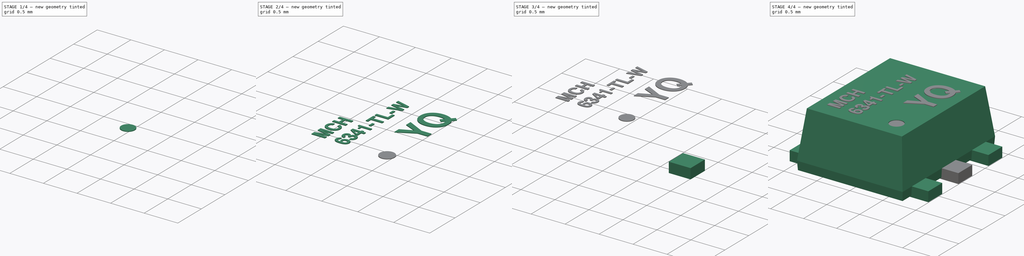
[diagram: build sequence overview — one tinted view per stage of 4, left to right]
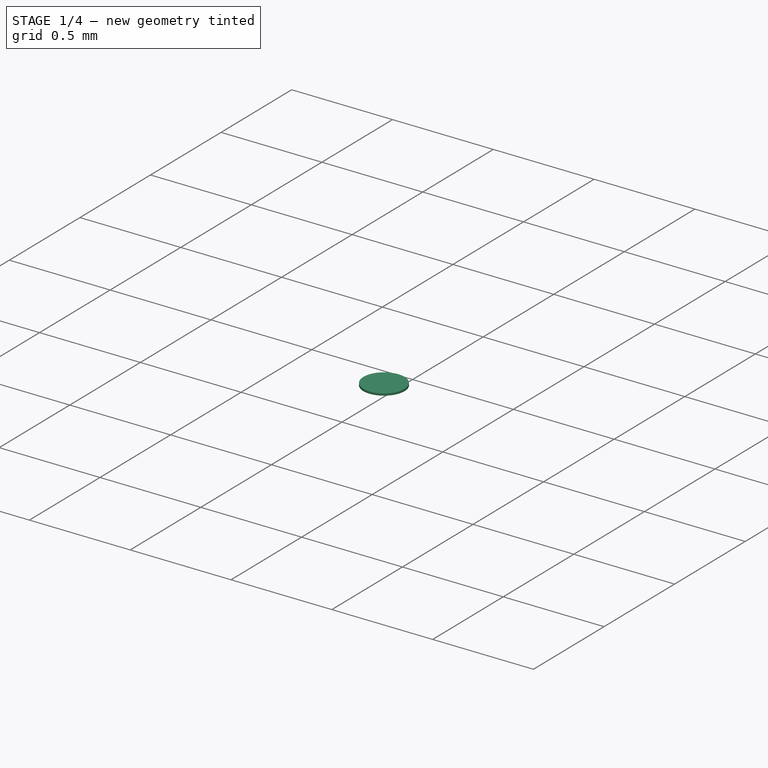
[diagram: stage 1 of 4 — iso view after this stage's code; geometry added in this stage tinted green]
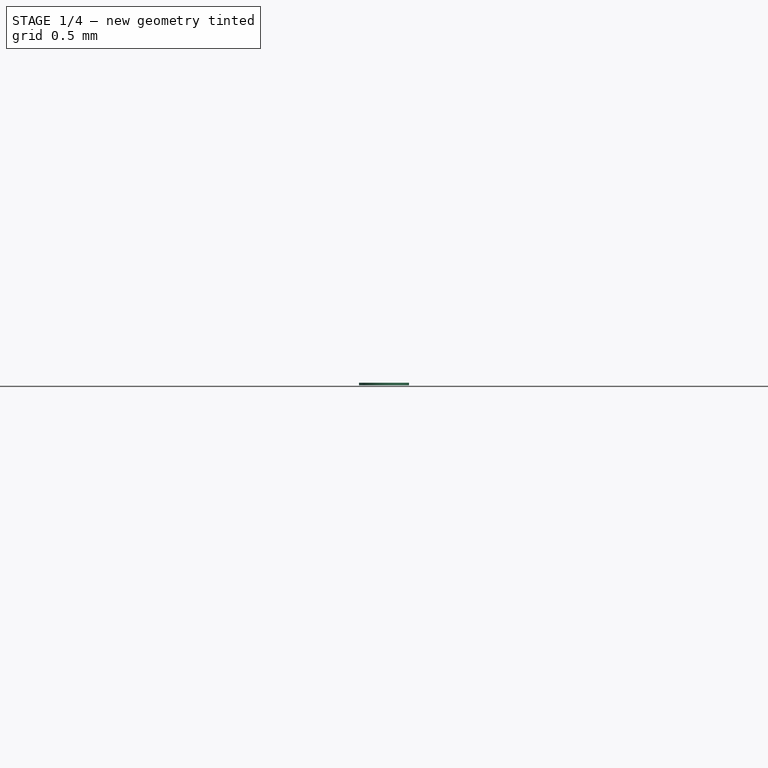
[diagram: stage 1 of 4 — front view after this stage's code; geometry added in this stage tinted green]
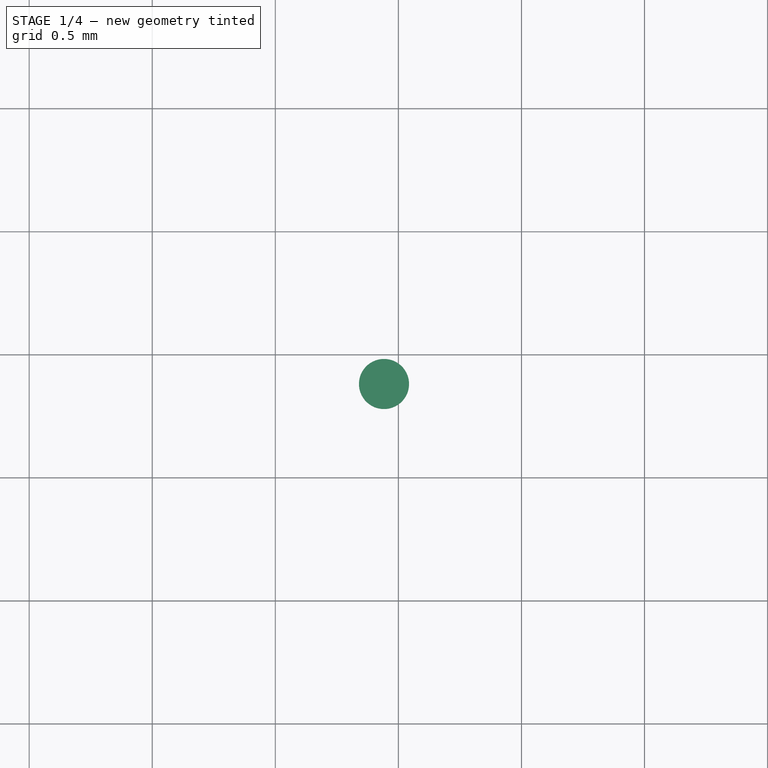
[diagram: stage 1 of 4 — top view after this stage's code; geometry added in this stage tinted green]
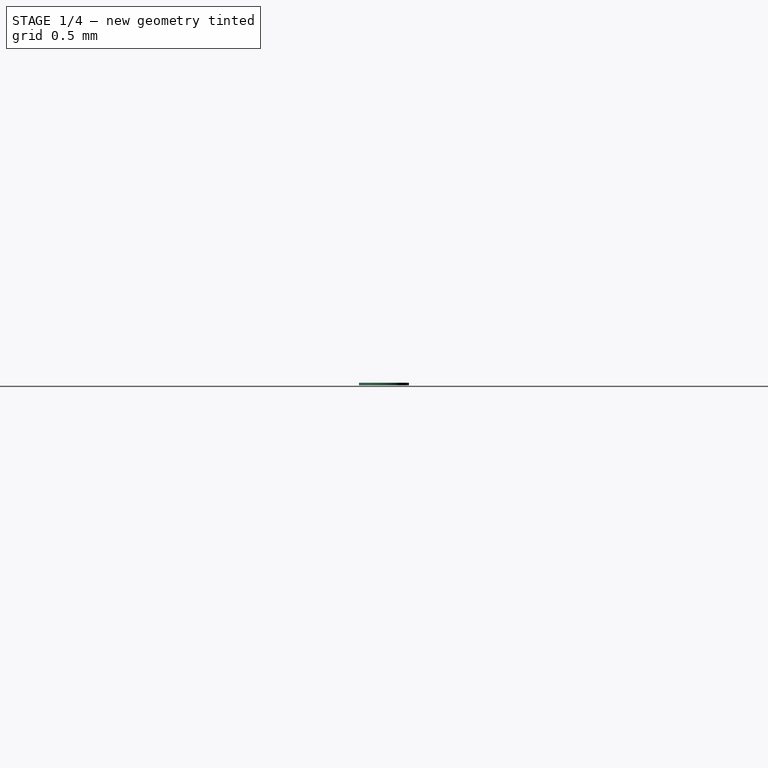
[diagram: stage 1 of 4 — right view after this stage's code; geometry added in this stage tinted green]
FCSTD DOCUMENT  (FreeCAD 0.19R16945 (Git))
Label: SC-88FL
License: All rights reserved
LicenseURL: http://en.wikipedia.org/wiki/All_rights_reserved
objects: PartDesign::Body×8, Sketcher::SketchObject×6, PartDesign::FeatureBase×5, Part::Part2DObjectPython×3, Part::Extrusion×3, PartDesign::Pad×2, PartDesign::AdditiveLoft×1, PartDesign::Pocket×1, PartDesign::ShapeBinder×1, Part::MultiFuse×1
note: 35 computed .brp shape members not serialized (recipe doc carries the construction recipe); baked Part::Feature solids carry a one-line shape summary decoded from their .brp

FEATURE [Sketcher::SketchObject] Sketch
  AttachmentOffset = pos=(0,0,0.15) rot=(0,0,1;0rad)
  MapMode = 5
  Placement = pos=(0,0,0.15) rot=(0,0,1;0rad)
  Support = -> [XY_Plane]
  expr: AttachmentOffset.Base.z = 0.15
  sketch-geometry (4):
    g0: LineSegment StartX=-0.8 StartY=1 StartZ=0 EndX=0.8 EndY=1 EndZ=0
    g1: LineSegment StartX=0.8 StartY=1 StartZ=0 EndX=0.8 EndY=-1 EndZ=0
    g2: LineSegment StartX=0.8 StartY=-1 StartZ=0 EndX=-0.8 EndY=-1 EndZ=0
    g3: LineSegment StartX=-0.8 StartY=-1 StartZ=0 EndX=-0.8 EndY=1 EndZ=0
  constraints (11):
    c: Coincident(g0,g1)
    c: Coincident(g1,g2)
    c: Coincident(g2,g3)
    c: Coincident(g3,g0)
    c: Horizontal(g0)
    c: Horizontal(g2)
    c: Vertical(g1)
    c: Vertical(g3)
    c: Symmetric(g1,g0,g-1)
    c: DistanceX(g0,g0) = 1.6
    c: DistanceY(g1,g1) = 2
FEATURE [Sketcher::SketchObject] Sketch001
  AttachmentOffset = pos=(0,0,0.85) rot=(0,0,1;0rad)
  MapMode = 5
  Placement = pos=(0,0,0.85) rot=(0,0,1;0rad)
  Support = -> [XY_Plane]
  expr: Constraints[10] = 0.9 * Sketch.Constraints[10]
  expr: Constraints[9] = 0.9 * Sketch.Constraints[9]
  sketch-geometry (4):
    g0: LineSegment StartX=-0.72 StartY=0.9 StartZ=0 EndX=0.72 EndY=0.9 EndZ=0
    g1: LineSegment StartX=0.72 StartY=0.9 StartZ=0 EndX=0.72 EndY=-0.9 EndZ=0
    g2: LineSegment StartX=0.72 StartY=-0.9 StartZ=0 EndX=-0.72 EndY=-0.9 EndZ=0
    g3: LineSegment StartX=-0.72 StartY=-0.9 StartZ=0 EndX=-0.72 EndY=0.9 EndZ=0
  constraints (11):
    c: Coincident(g0,g1)
    c: Coincident(g1,g2)
    c: Coincident(g2,g3)
    c: Coincident(g3,g0)
    c: Horizontal(g0)
    c: Horizontal(g2)
    c: Vertical(g1)
    c: Vertical(g3)
    c: Symmetric(g1,g0,g-1)
    c: DistanceX(g0,g0) = 1.44
    c: DistanceY(g1,g1) = 1.8
FEATURE [Sketcher::SketchObject] Sketch002
  AttachmentOffset = pos=(0,0,0.02) rot=(0,0,1;0rad)
  MapMode = 5
  Placement = pos=(0,0,0.02) rot=(0,0,1;0rad)
  Support = -> [XY_Plane]
  expr: Constraints[10] = 0.99 * Sketch.Constraints[10]
  expr: Constraints[9] = 0.99 * Sketch.Constraints[9]
  sketch-geometry (4):
    g0: LineSegment StartX=-0.792 StartY=0.99 StartZ=0 EndX=0.792 EndY=0.99 EndZ=0
    g1: LineSegment StartX=0.792 StartY=0.99 StartZ=0 EndX=0.792 EndY=-0.99 EndZ=0
    g2: LineSegment StartX=0.792 StartY=-0.99 StartZ=0 EndX=-0.792 EndY=-0.99 EndZ=0
    g3: LineSegment StartX=-0.792 StartY=-0.99 StartZ=0 EndX=-0.792 EndY=0.99 EndZ=0
  constraints (11):
    c: Coincident(g0,g1)
    c: Coincident(g1,g2)
    c: Coincident(g2,g3)
    c: Coincident(g3,g0)
    c: Horizontal(g0)
    c: Horizontal(g2)
    c: Vertical(g1)
    c: Vertical(g3)
    c: Symmetric(g1,g0,g-1)
    c: DistanceX(g0,g0) = 1.584
    c: DistanceY(g1,g1) = 1.98
FEATURE [PartDesign::AdditiveLoft] AdditiveLoft
  Closed = true
  Profile = -> Sketch001
  Ruled = true
  Sections = -> [Sketch,Sketch002]
FEATURE [Part::Part2DObjectPython] ShapeString002  # Draft 2D object (typed FeaturePython)
  AttachmentOffset = pos=(0,-0.8,0) rot=(0,0,-1;1.5708rad)
  FontFile = <userpath>/Desktop/GitHub/freecad-projects/00-fonts/FreeSansBold.ttf
  MapMode = 6
  Placement = pos=(0.55,-0.1,0.85) rot=(0,0,1;1.5708rad)
  Size = 0.2
  String = YQ
  Tracking = 0
FEATURE [PartDesign::Pocket] Pocket
  BaseFeature = -> AdditiveLoft
  Length = 0.02
  Length2 = 100
  Profile = -> Sketch004
  Type = 0
FEATURE [PartDesign::ShapeBinder] ShapeBinder
  Placement = pos=(0,0,-0.02) rot=(0,0,1;0rad)
  Support = -> [Pocket]
  TraceSupport = false
FEATURE [Sketcher::SketchObject] Sketch005
  ExternalGeometry = -> [ShapeBinder]
  MapMode = 5
  Placement = pos=(0,0,0.83) rot=(0,0,1;0rad)
  Support = -> [ShapeBinder]
  sketch-geometry (1):
    g0: Circle CenterX=0.441496 CenterY=-0.618566 CenterZ=0 NormalX=0 NormalY=0 NormalZ=1 AngleXU=0 Radius=0.101713
  constraints (2):
    c: Coincident(g0,g-3)
    c: Equal(g-3,g0)
FEATURE [PartDesign::Pad] Pad001
  Length = 0.01
  Length2 = 100
  Placement = pos=(0,0,-0.02) rot=(0,0,1;0rad)
  Profile = -> Sketch005
  Type = 0
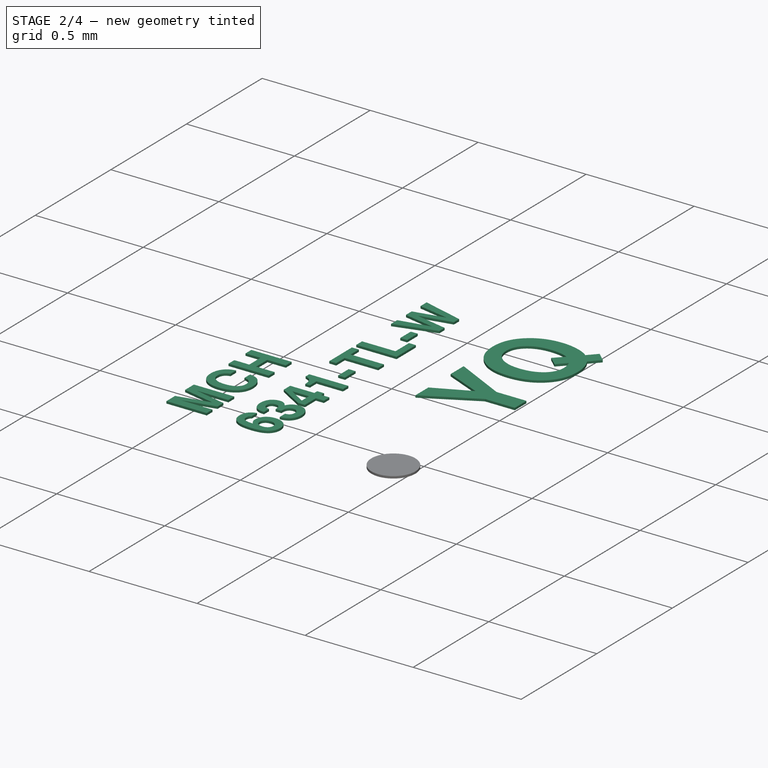
[diagram: stage 2 of 4 — iso view after this stage's code; geometry added in this stage tinted green]
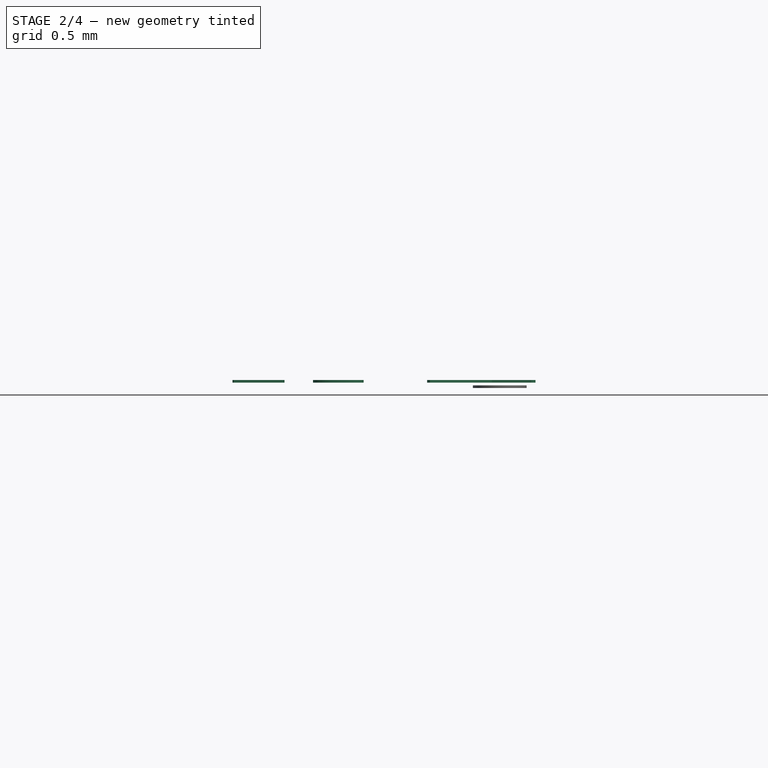
[diagram: stage 2 of 4 — front view after this stage's code; geometry added in this stage tinted green]
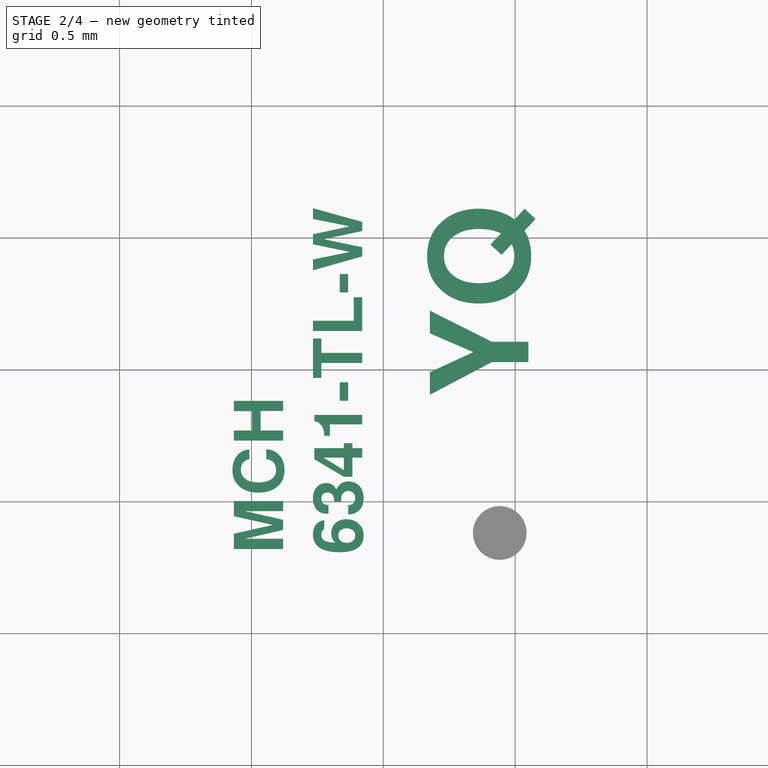
[diagram: stage 2 of 4 — top view after this stage's code; geometry added in this stage tinted green]
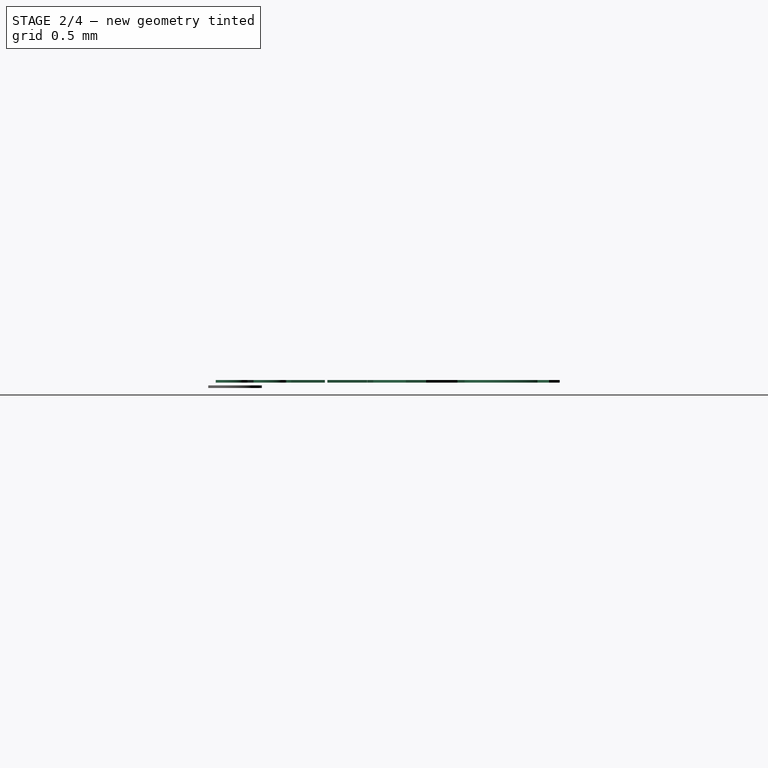
[diagram: stage 2 of 4 — right view after this stage's code; geometry added in this stage tinted green]
FEATURE [PartDesign::Body] Body006
  BaseFeature = -> Body001
  Group = -> [Clone004]
  Origin = -> Origin006
  Placement = pos=(0,-0.65,0) rot=(0,0,1;0rad)
  Tip = -> Clone004
FEATURE [Sketcher::SketchObject] Sketch004
  MapMode = 5
  Placement = pos=(0,0,0.85) rot=(0,0,1;0rad)
  Support = -> [AdditiveLoft]
  sketch-geometry (1):
    g0: Circle CenterX=0.441496 CenterY=-0.618566 CenterZ=0 NormalX=0 NormalY=0 NormalZ=1 AngleXU=0 Radius=0.101713
FEATURE [Part::Part2DObjectPython] ShapeString  # Draft 2D object (typed FeaturePython)
  AttachmentOffset = pos=(1.1,-0.2,0) rot=(0,0,-1;1.5708rad)
  FontFile = <userpath>/Desktop/GitHub/freecad-projects/00-fonts/FreeSansBold.ttf
  MapMode = 6
  Placement = pos=(-0.38,-0.7,0.85) rot=(0,0,1;1.5708rad)
  Size = 0.1
  String = MCH
  Tracking = 0
FEATURE [Part::Part2DObjectPython] ShapeString001  # Draft 2D object (typed FeaturePython)
  AttachmentOffset = pos=(0.8,-0.2,0) rot=(0,0,-1;1.5708rad)
  FontFile = <userpath>/Desktop/GitHub/freecad-projects/00-fonts/FreeSansBold.ttf
  MapMode = 6
  Placement = pos=(-0.08,-0.7,0.85) rot=(0,0,1;1.5708rad)
  Size = 0.1
  String = 6341-TL-W
  Tracking = 0
FEATURE [Part::Extrusion] Extrude
  Base = -> ShapeString
  Dir = (0,0,1)
  DirMode = 2
  FaceMakerClass = Part::FaceMakerBullseye
  LengthFwd = 0.01
  LengthRev = 0
  Solid = false
  Symmetric = false
FEATURE [Part::Extrusion] Extrude001
  Base = -> ShapeString001
  Dir = (0,0,1)
  DirMode = 2
  FaceMakerClass = Part::FaceMakerBullseye
  LengthFwd = 0.01
  LengthRev = 0
  Solid = false
  Symmetric = false
FEATURE [PartDesign::Body] Body  label="Package"
  Group = -> [Sketch,Sketch001,Sketch002,AdditiveLoft,Sketch004,Pocket]
  Origin = -> Origin
  Tip = -> Pocket
FEATURE [Part::Extrusion] Extrude002
  Base = -> ShapeString002
  Dir = (0,0,1)
  DirMode = 2
  FaceMakerClass = Part::FaceMakerBullseye
  LengthFwd = 0.01
  LengthRev = 0
  Solid = false
  Symmetric = false
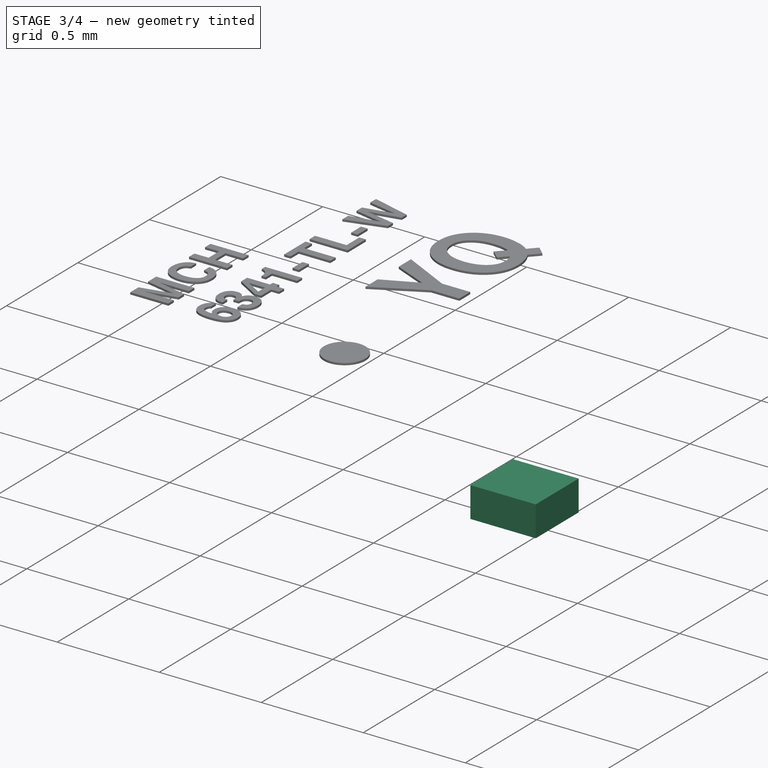
[diagram: stage 3 of 4 — iso view after this stage's code; geometry added in this stage tinted green]
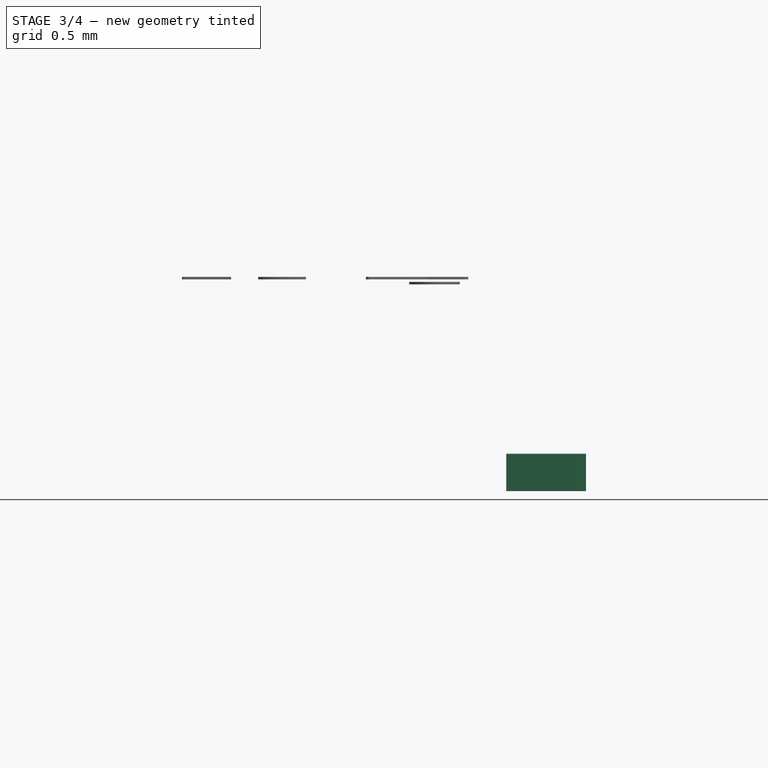
[diagram: stage 3 of 4 — front view after this stage's code; geometry added in this stage tinted green]
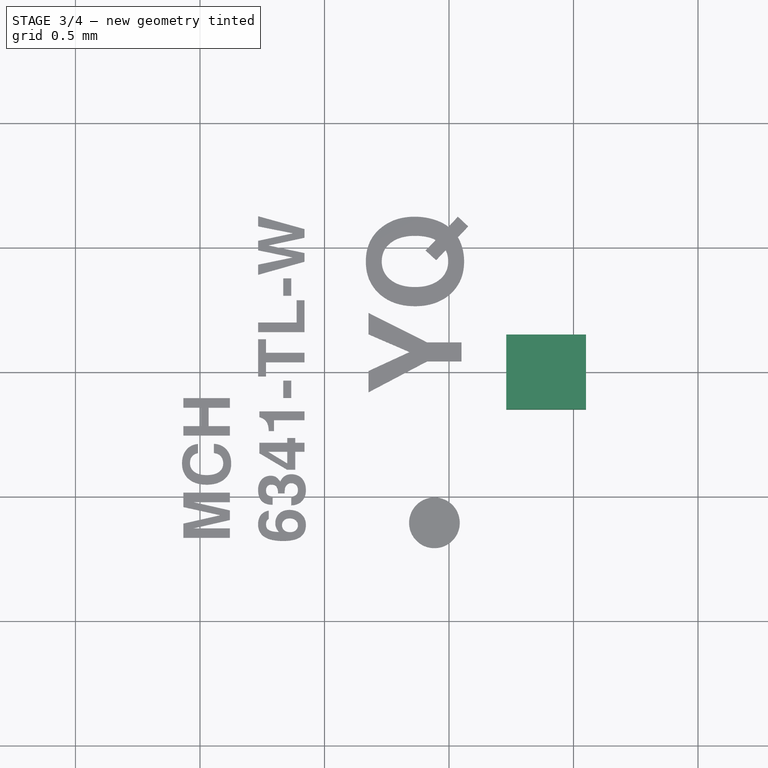
[diagram: stage 3 of 4 — top view after this stage's code; geometry added in this stage tinted green]
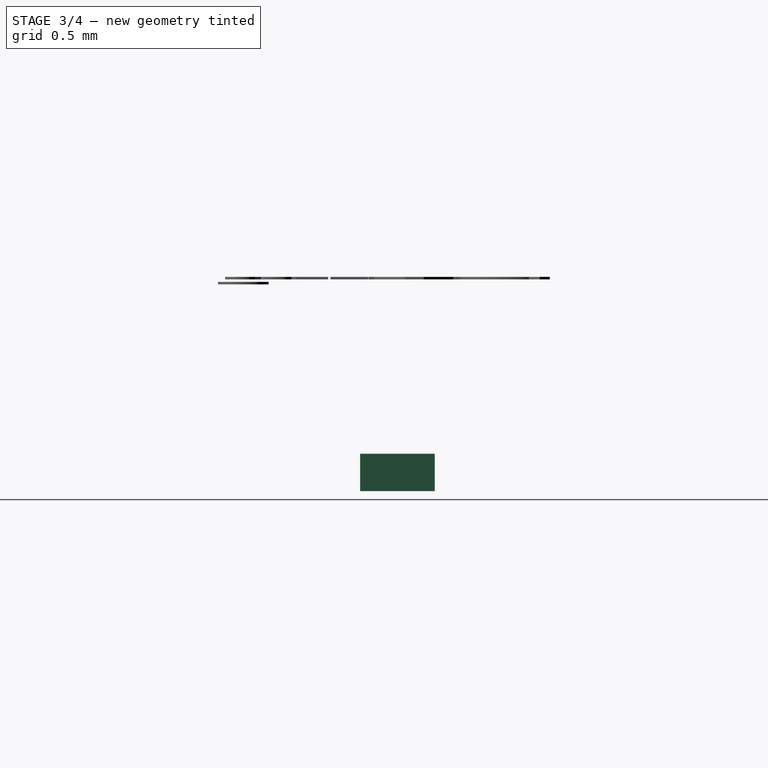
[diagram: stage 3 of 4 — right view after this stage's code; geometry added in this stage tinted green]
FEATURE [Sketcher::SketchObject] Sketch003
  MapMode = 5
  Support = -> [XY_Plane001]
  expr: Constraints[8] = 0.25 + 0.07000000000000001
  sketch-geometry (4):
    g0: LineSegment StartX=0.73 StartY=0.15 StartZ=0 EndX=1.05 EndY=0.15 EndZ=0
    g1: LineSegment StartX=1.05 StartY=0.15 StartZ=0 EndX=1.05 EndY=-0.15 EndZ=0
    g2: LineSegment StartX=1.05 StartY=-0.15 StartZ=0 EndX=0.73 EndY=-0.15 EndZ=0
    g3: LineSegment StartX=0.73 StartY=-0.15 StartZ=0 EndX=0.73 EndY=0.15 EndZ=0
  constraints (11):
    c: Coincident(g0,g1)
    c: Coincident(g1,g2)
    c: Coincident(g2,g3)
    c: Coincident(g3,g0)
    c: Horizontal(g0)
    c: Horizontal(g2)
    c: DistanceX(g-1,g0) = 1.05
    c: Vertical(g3)
    c: DistanceX(g2,g2) = 0.32
    c: Symmetric(g0,g1,g-1)
    c: DistanceY(g1,g1) = 0.3
FEATURE [PartDesign::Pad] Pad
  Length = 0.15
  Length2 = 100
  Profile = -> Sketch003
  Type = 0
FEATURE [PartDesign::Body] Body003
  BaseFeature = -> Body001
  Group = -> [Clone001]
  Origin = -> Origin003
  Placement = pos=(0,0.65,0) rot=(0,0,1;3.14159rad)
  Tip = -> Clone001
FEATURE [PartDesign::FeatureBase] Clone002
  BaseFeature = -> Body001
FEATURE [PartDesign::Body] Body004
  BaseFeature = -> Body001
  Group = -> [Clone002]
  Origin = -> Origin004
  Placement = pos=(0,-0.65,0) rot=(0,0,1;3.14159rad)
  Tip = -> Clone002
FEATURE [PartDesign::FeatureBase] Clone003
  BaseFeature = -> Body001
FEATURE [PartDesign::Body] Body005
  BaseFeature = -> Body001
  Group = -> [Clone003]
  Origin = -> Origin005
  Placement = pos=(0,0.65,0) rot=(0,0,1;0rad)
  Tip = -> Clone003
FEATURE [PartDesign::FeatureBase] Clone004
  BaseFeature = -> Body001
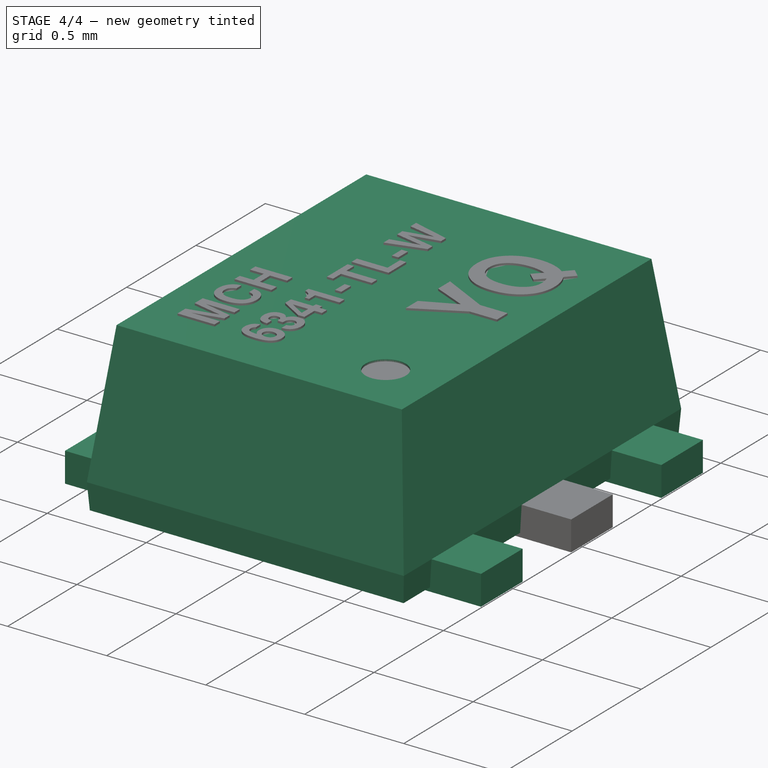
[diagram: stage 4 of 4 — iso view after this stage's code; geometry added in this stage tinted green]
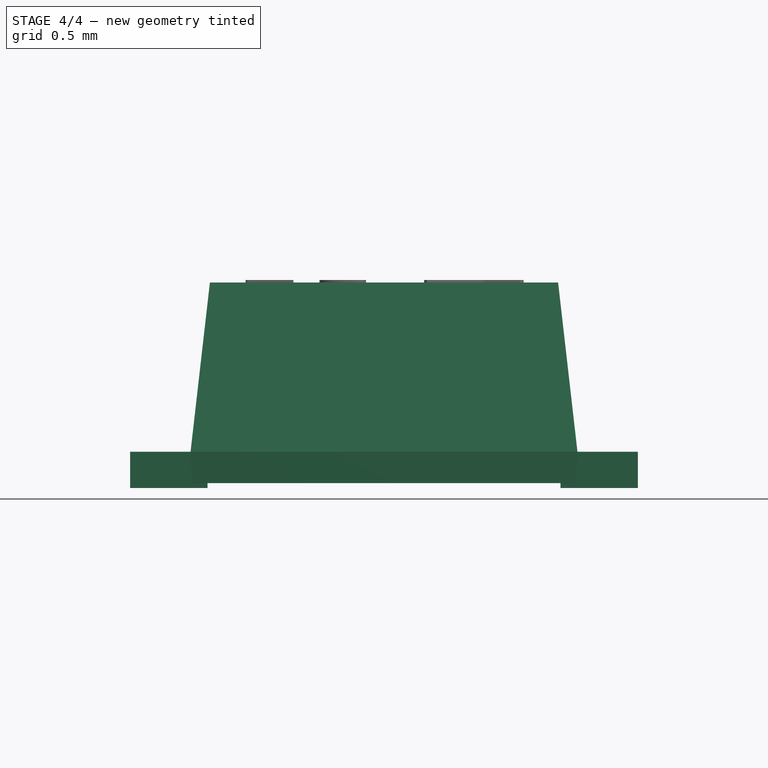
[diagram: stage 4 of 4 — front view after this stage's code; geometry added in this stage tinted green]
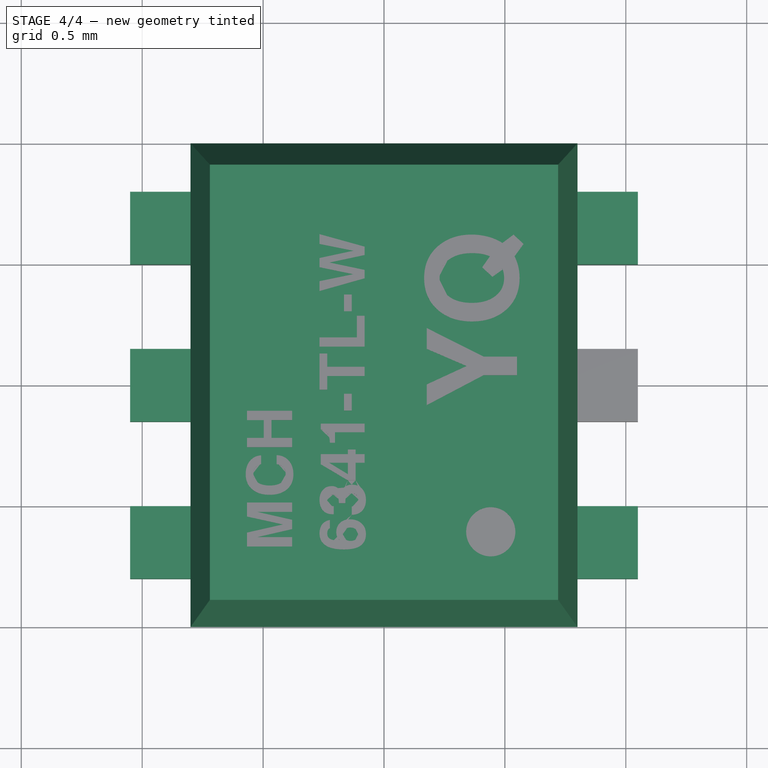
[diagram: stage 4 of 4 — top view after this stage's code; geometry added in this stage tinted green]
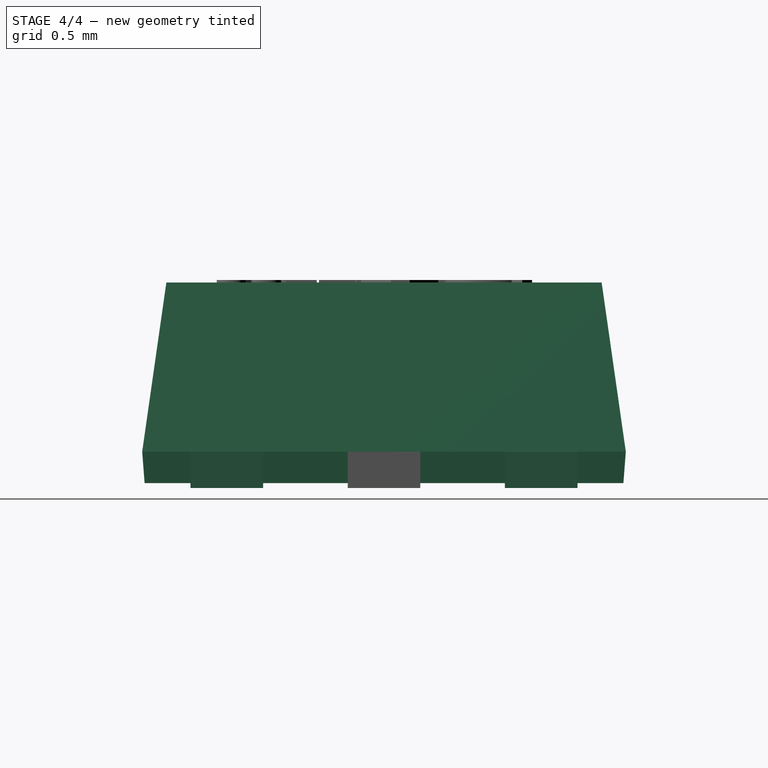
[diagram: stage 4 of 4 — right view after this stage's code; geometry added in this stage tinted green]
FEATURE [PartDesign::Body] Body001  label="Lead"
  Group = -> [Sketch003,Pad]
  Origin = -> Origin001
  Tip = -> Pad
FEATURE [PartDesign::FeatureBase] Clone
  BaseFeature = -> Body001
FEATURE [PartDesign::Body] Body002
  BaseFeature = -> Body001
  Group = -> [Clone]
  Origin = -> Origin002
  Placement = pos=(0,0,0) rot=(0,0,1;3.14159rad)
  Tip = -> Clone
FEATURE [PartDesign::FeatureBase] Clone001
  BaseFeature = -> Body001
FEATURE [PartDesign::Body] Body007
  Group = -> [ShapeBinder,Sketch005,Pad001]
  Origin = -> Origin007
  Tip = -> Pad001
FEATURE [Part::MultiFuse] Fusion  label="MCH6341-TL-W"
  Shapes = -> [Extrude,Extrude002,Extrude001,Body002,Body001,Body007,Body006,Body004,Body005,Body,Body003]
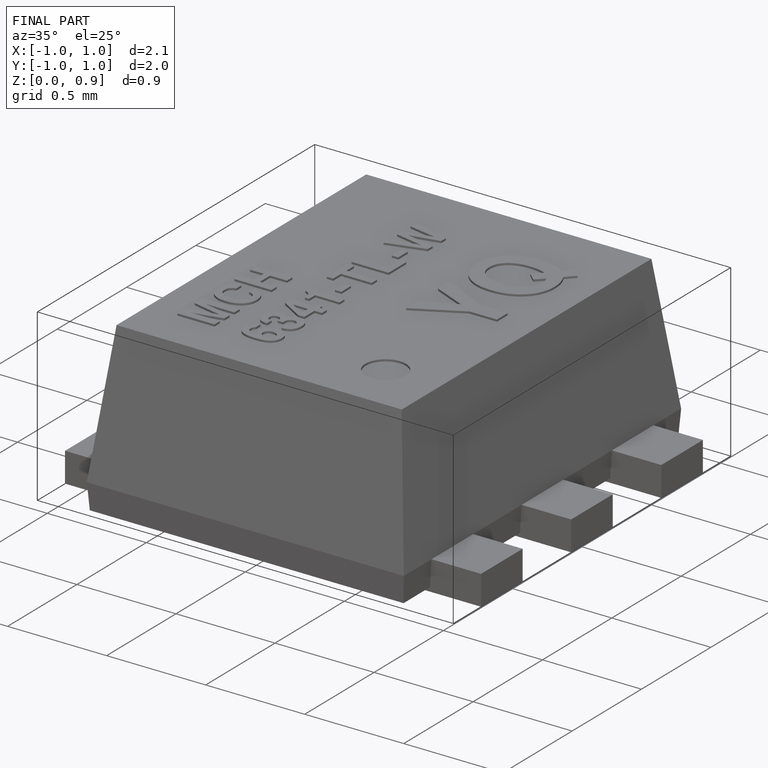
[diagram: finished part — iso view with bounding-box wireframe]
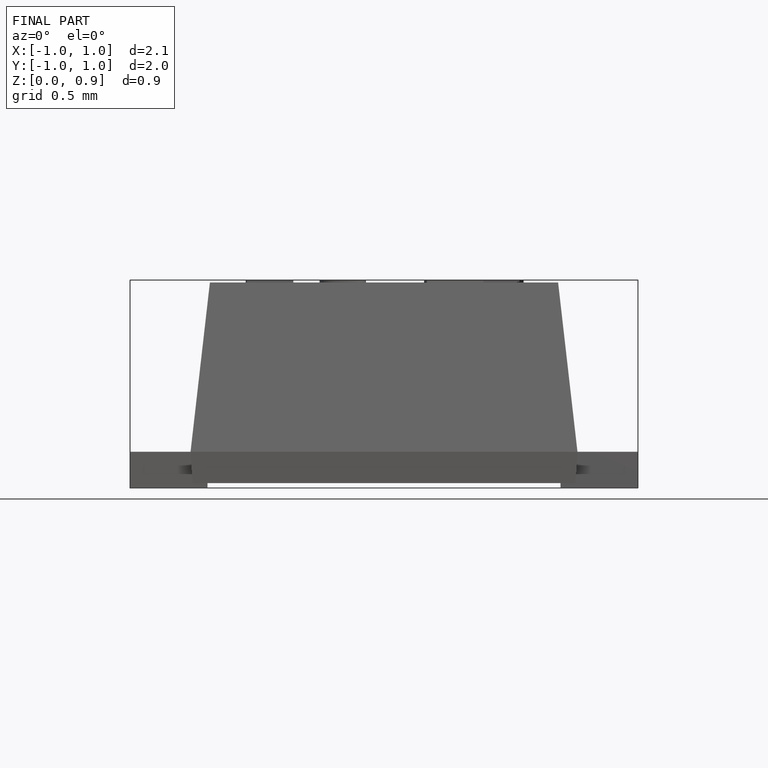
[diagram: finished part — front view with bounding-box wireframe]
